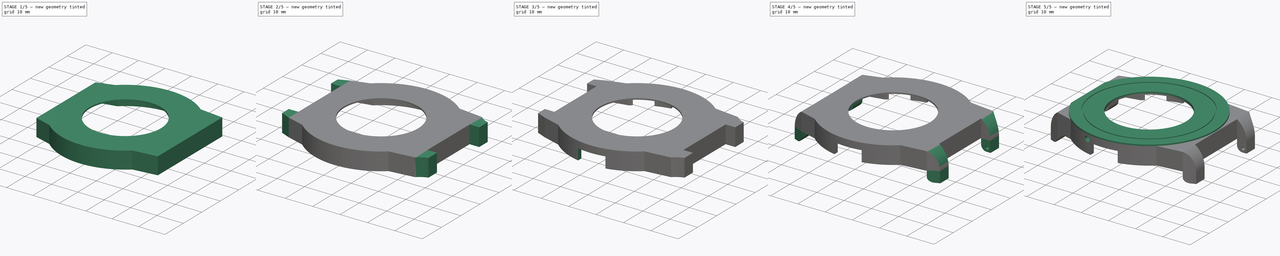
[diagram: build sequence overview — one tinted view per stage of 5, left to right]
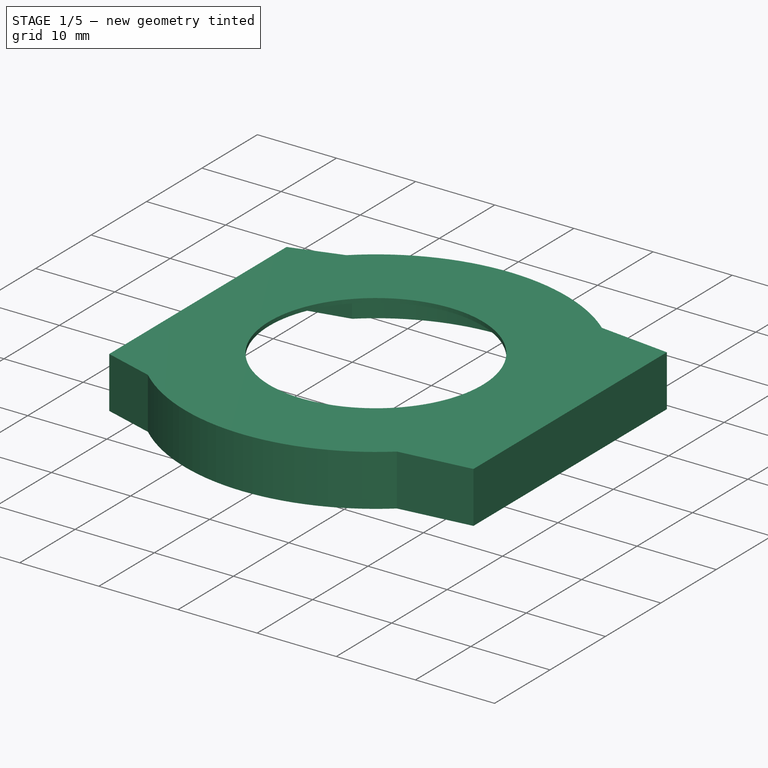
[diagram: stage 1 of 5 — iso view after this stage's code; geometry added in this stage tinted green]
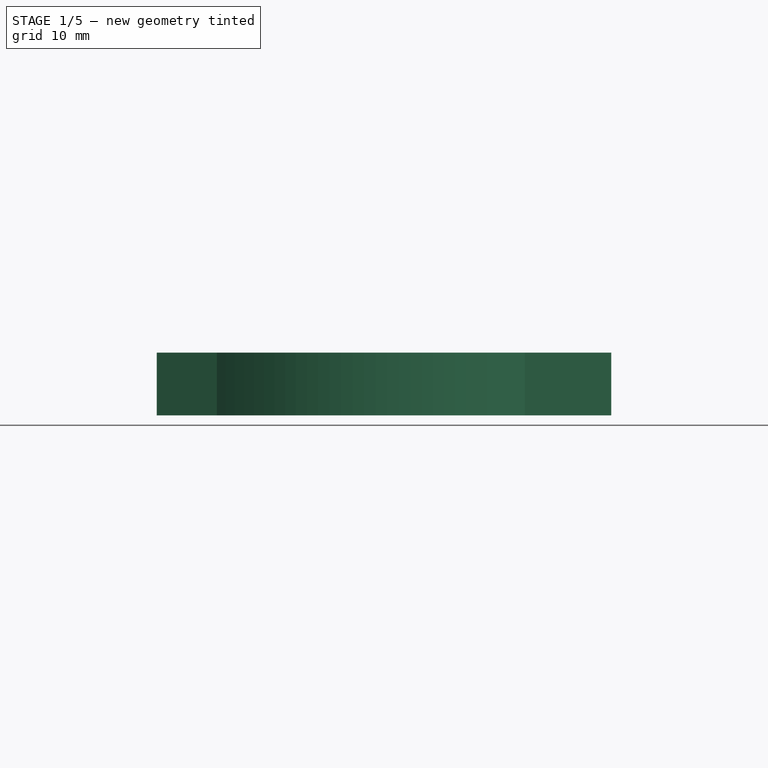
[diagram: stage 1 of 5 — front view after this stage's code; geometry added in this stage tinted green]
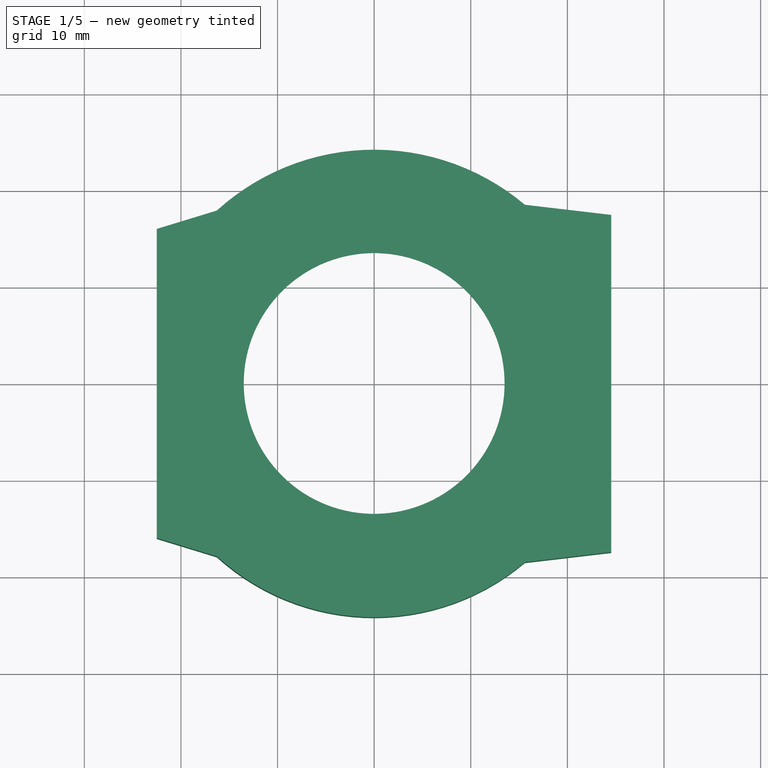
[diagram: stage 1 of 5 — top view after this stage's code; geometry added in this stage tinted green]
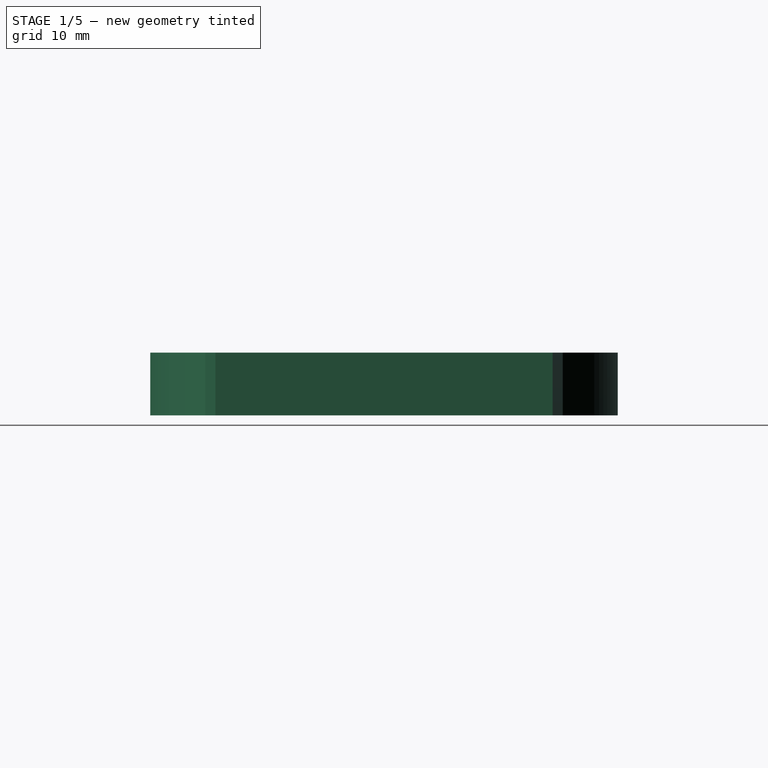
[diagram: stage 1 of 5 — right view after this stage's code; geometry added in this stage tinted green]
FCSTD DOCUMENT  (FreeCAD 0.20RUnknown)
Label: case
License: All rights reserved
LicenseURL: http://en.wikipedia.org/wiki/All_rights_reserved
objects: Sketcher::SketchObject×17, PartDesign::Pocket×11, PartDesign::Pad×6, PartDesign::Plane×1, PartDesign::Body×1
note: 53 computed .brp shape members not serialized (recipe doc carries the construction recipe); baked Part::Feature solids carry a one-line shape summary decoded from their .brp

FEATURE [Sketcher::SketchObject] Sketch  label="External"
  FullyConstrained = true
  MapMode = 5
  Support = -> [XY_Plane]
  sketch-geometry (8):
    g0: LineSegment StartX=-22.502 StartY=16 StartZ=0 EndX=-22.502 EndY=-16 EndZ=0
    g1: LineSegment StartX=-22.502 StartY=16 StartZ=0 EndX=-16.2859 EndY=17.9 EndZ=0
    g2: LineSegment StartX=-22.502 StartY=-16 StartZ=0 EndX=-16.2859 EndY=-17.9 EndZ=0
    g3: LineSegment StartX=15.601 StartY=18.5 StartZ=0 EndX=24.5395 EndY=17.45 EndZ=0
    g4: LineSegment StartX=15.601 StartY=-18.5 StartZ=0 EndX=24.5395 EndY=-17.45 EndZ=0
    g5: LineSegment StartX=24.5395 StartY=17.45 StartZ=0 EndX=24.5395 EndY=-17.45 EndZ=0
    g6: ArcOfCircle CenterX=0 CenterY=0 CenterZ=0 NormalX=0 NormalY=0 NormalZ=1 AngleXU=0 Radius=24.2 StartAngle=0.870208 EndAngle=2.30901
    g7: ArcOfCircle CenterX=0 CenterY=0 CenterZ=0 NormalX=0 NormalY=0 NormalZ=1 AngleXU=0 Radius=24.2 StartAngle=3.97417 EndAngle=5.41298
  constraints (21):
    c: Distance(g0) = 32
    c: Symmetric(g0,g0,g-1)
    c: Coincident(g1,g0)
    c: Distance(g1) = 6.5
    c: Coincident(g2,g0)
    c: Symmetric(g1,g2,g-1)
    c: Distance(g1,g2) = 35.8
    c: Symmetric(g3,g4,g-1)
    c: Symmetric(g4,g3,g-1)
    c: Distance(g3) = 9
    c: Distance(g3,g4) = 34.9
    c: Distance(g3,g4) = 37
    c: Coincident(g5,g3)
    c: Coincident(g5,g4)
    c: Coincident(g6,g-1)
    c: Coincident(g6,g1)
    c: Coincident(g6,g3)
    c: Coincident(g7,g6)
    c: Coincident(g7,g4)
    c: Coincident(g7,g2)
    c: Radius(g6) = 24.2
FEATURE [PartDesign::Pad] Pad  label="Main"
  Direction = (0,0,1)
  Length = 6.5
  Length2 = 100
  Profile = -> Sketch
  Type = 0
FEATURE [Sketcher::SketchObject] Sketch001  label="Internal"
  FullyConstrained = true
  MapMode = 5
  Support = -> [XY_Plane]
  sketch-geometry (8):
    g0: LineSegment StartX=-14.854 StartY=16.9 StartZ=0 EndX=-21.2122 EndY=15.55 EndZ=0
    g1: LineSegment StartX=-21.2122 StartY=-15.55 StartZ=0 EndX=-14.854 EndY=-16.9 EndZ=0
    g2: LineSegment StartX=-21.2122 StartY=15.55 StartZ=0 EndX=-21.2122 EndY=-15.55 EndZ=0
    g3: LineSegment StartX=14.7394 StartY=17 StartZ=0 EndX=23.6192 EndY=16.4 EndZ=0
    g4: LineSegment StartX=14.7394 StartY=-17 StartZ=0 EndX=23.6192 EndY=-16.4 EndZ=0
    g5: LineSegment StartX=23.6192 StartY=16.4 StartZ=0 EndX=23.6192 EndY=-16.4 EndZ=0
    g6: ArcOfCircle CenterX=0 CenterY=0 CenterZ=0 NormalX=0 NormalY=0 NormalZ=1 AngleXU=0 Radius=22.5 StartAngle=0.856502 EndAngle=2.29185
    g7: ArcOfCircle CenterX=0 CenterY=0 CenterZ=0 NormalX=0 NormalY=0 NormalZ=1 AngleXU=0 Radius=22.5 StartAngle=3.99134 EndAngle=5.42668
  constraints (21):
    c: Symmetric(g0,g1,g-1)
    c: Symmetric(g0,g1,g-1)
    c: Distance(g0) = 6.5
    c: Distance(g0,g1) = 31.1
    c: Distance(g0,g1) = 33.8
    c: Coincident(g2,g0)
    c: Coincident(g2,g1)
    c: Symmetric(g3,g4,g-1)
    c: Symmetric(g3,g4,g-1)
    c: Distance(g3,g4) = 34
    c: Distance(g3,g4) = 32.8
    c: Distance(g3,g3) = 8.9
    c: Coincident(g5,g3)
    c: Coincident(g5,g4)
    c: Coincident(g6,g-1)
    c: Coincident(g6,g0)
    c: Coincident(g6,g3)
    c: Coincident(g7,g6)
    c: Coincident(g7,g4)
    c: Coincident(g7,g1)
    c: Radius(g6) = 22.5
FEATURE [PartDesign::Pocket] Pocket  label="PCB pocket"
  BaseFeature = -> Pad
  Direction = (0,0,-1)
  Length = 6
  Length2 = 100
  Profile = -> Sketch001
  Reversed = true
  Type = 0
FEATURE [Sketcher::SketchObject] Sketch002  label="window"
  FullyConstrained = true
  MapMode = 5
  Placement = pos=(0,0,6) rot=(1,0,0;3.14159rad)
  Support = -> [Pocket]
  sketch-geometry (1):
    g0: Circle CenterX=0 CenterY=0 CenterZ=0 NormalX=0 NormalY=0 NormalZ=1 AngleXU=0 Radius=13.5
  constraints (2):
    c: Coincident(g0,g-1)
    c: Radius(g0) = 13.5
FEATURE [PartDesign::Pocket] Pocket001  label="Display surface"
  BaseFeature = -> Pocket
  Direction = (0,0,1)
  Length = 1
  Length2 = 100
  Profile = -> Sketch002
  Type = 0
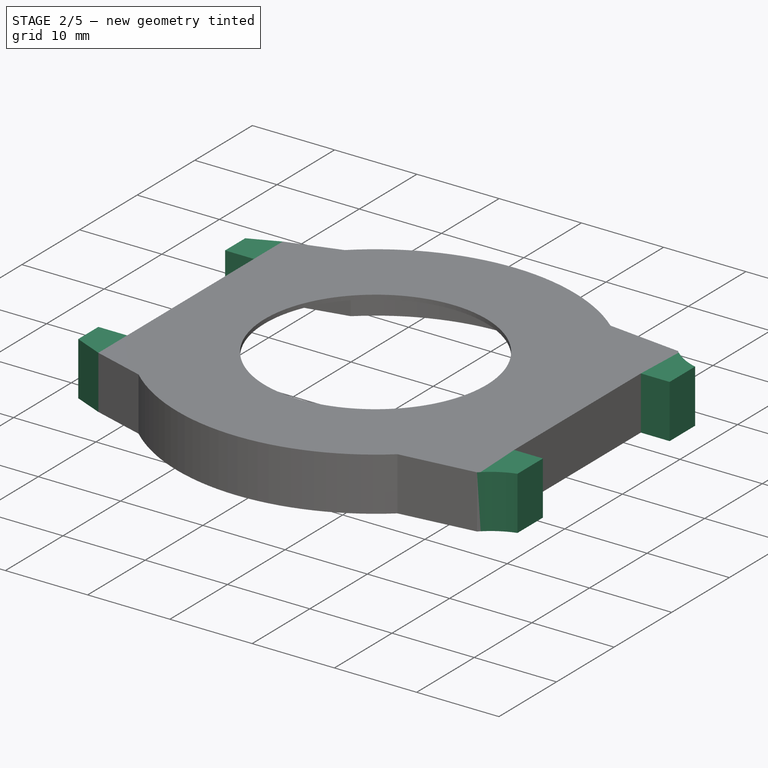
[diagram: stage 2 of 5 — iso view after this stage's code; geometry added in this stage tinted green]
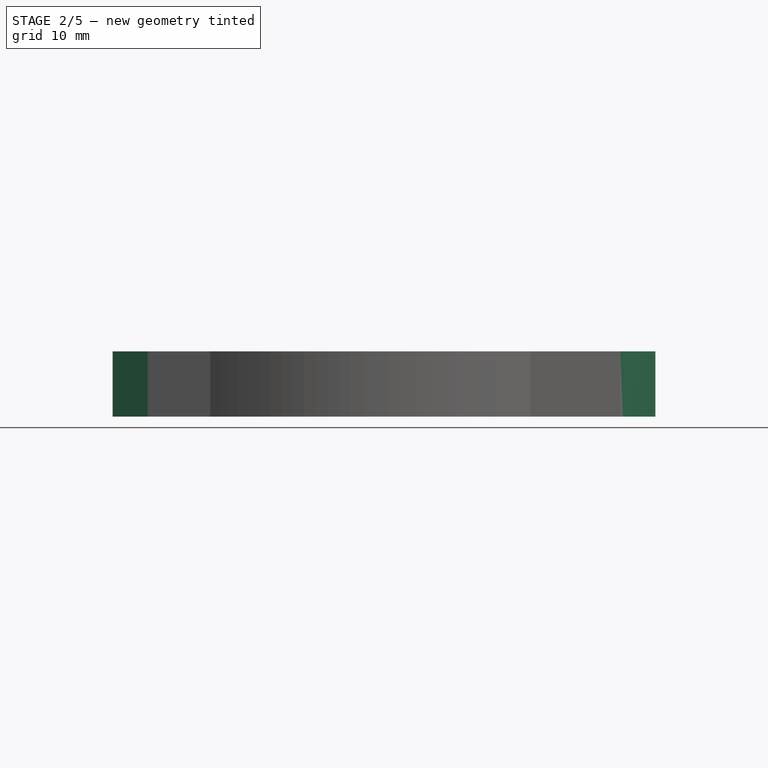
[diagram: stage 2 of 5 — front view after this stage's code; geometry added in this stage tinted green]
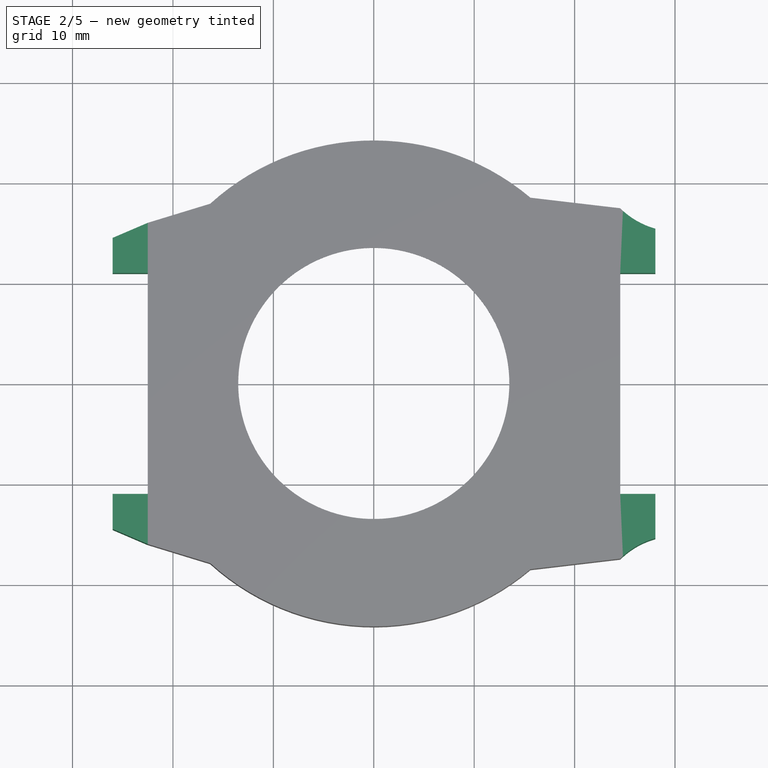
[diagram: stage 2 of 5 — top view after this stage's code; geometry added in this stage tinted green]
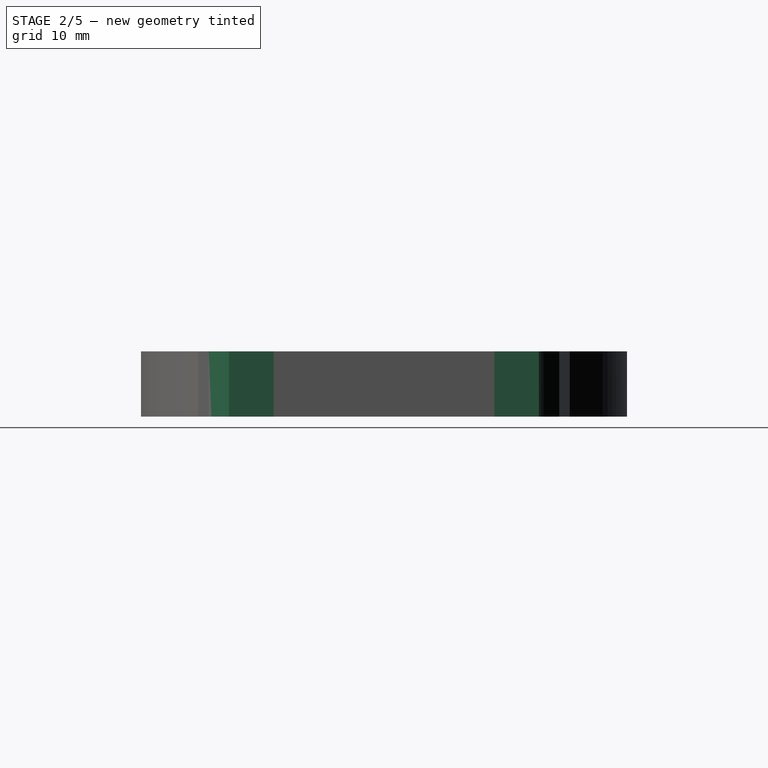
[diagram: stage 2 of 5 — right view after this stage's code; geometry added in this stage tinted green]
FEATURE [Sketcher::SketchObject] Sketch003  label="B telescope holder"
  ExternalGeometry = -> [Sketch,Pocket001]
  FullyConstrained = true
  MapMode = 5
  Placement = pos=(24.5395,0,0) rot=(0.57735,0.57735,0.57735;2.0944rad)
  Support = -> [Pad]
  sketch-geometry (8):
    g0: LineSegment StartX=-11 StartY=6.5 StartZ=0 EndX=-17.45 EndY=6.5 EndZ=0
    g1: LineSegment StartX=-17.45 StartY=6.5 StartZ=0 EndX=-17.45 EndY=0 EndZ=0
    g2: LineSegment StartX=-17.45 StartY=0 StartZ=0 EndX=-11 EndY=0 EndZ=0
    g3: LineSegment StartX=-11 StartY=0 StartZ=0 EndX=-11 EndY=6.5 EndZ=0
    g4: LineSegment StartX=11 StartY=6.5 StartZ=0 EndX=17.45 EndY=6.5 EndZ=0
    g5: LineSegment StartX=17.45 StartY=6.5 StartZ=0 EndX=17.45 EndY=0 EndZ=0
    g6: LineSegment StartX=17.45 StartY=0 StartZ=0 EndX=11 EndY=0 EndZ=0
    g7: LineSegment StartX=11 StartY=0 StartZ=0 EndX=11 EndY=6.5 EndZ=0
  constraints (20):
    c: Coincident(g0,g1)
    c: Coincident(g1,g2)
    c: Coincident(g2,g3)
    c: Coincident(g3,g0)
    c: Horizontal(g0)
    c: Horizontal(g2)
    c: Vertical(g1)
    c: Vertical(g3)
    c: Coincident(g1,g-3)
    c: Coincident(g4,g5)
    c: Coincident(g5,g6)
    c: Coincident(g6,g7)
    c: Coincident(g7,g4)
    c: Horizontal(g4)
    c: Horizontal(g6)
    c: Vertical(g7)
    c: Coincident(g5,g-4)
    c: Symmetric(g0,g4,g-2)
    c: Coincident(g4,g-6)
    c: Distance(g2,g6) = 22
FEATURE [PartDesign::Pad] Pad001  label="B holder"
  BaseFeature = -> Pocket001
  Direction = (1,0,0)
  Length = 3.5
  Length2 = 100
  Profile = -> Sketch003
  ReferenceAxis = -> Sketch003 [N_Axis]
  Type = 0
FEATURE [Sketcher::SketchObject] Sketch006
  ExternalGeometry = -> [Sketch003,Pad001]
  FullyConstrained = true
  MapMode = 5
  Placement = pos=(0,0,6.5) rot=(0,0,1;0rad)
  Support = -> [Pad001]
  sketch-geometry (6):
    g0: ArcOfCircle CenterX=30.1895 CenterY=23.15 CenterZ=0 NormalX=0 NormalY=0 NormalZ=1 AngleXU=0 Radius=8.02574 StartAngle=3.9314 EndAngle=4.44119
    g1: ArcOfCircle CenterX=30.1895 CenterY=-23.15 CenterZ=0 NormalX=0 NormalY=0 NormalZ=1 AngleXU=0 Radius=8.02574 StartAngle=1.842 EndAngle=2.35179
    g2: LineSegment StartX=28.0395 StartY=17.45 StartZ=0 EndX=24.5395 EndY=17.45 EndZ=0
    g3: LineSegment StartX=28.0395 StartY=17.45 StartZ=0 EndX=28.0395 EndY=15.4176 EndZ=0
    g4: LineSegment StartX=28.0395 StartY=-15.4176 StartZ=0 EndX=28.0395 EndY=-17.45 EndZ=0
    g5: LineSegment StartX=28.0395 StartY=-17.45 StartZ=0 EndX=24.5395 EndY=-17.45 EndZ=0
  constraints (15):
    c: Distance(g0,g1) = 46.3
    c: Symmetric(g0,g1,g-1)
    c: Symmetric(g0,g1,g-1)
    c: Coincident(g0,g-3)
    c: PointOnObject(g0,g-4)
    c: DistanceX(g-4,g0) = 2.15
    c: PointOnObject(g1,g-5)
    c: Coincident(g2,g-4)
    c: Coincident(g2,g0)
    c: Coincident(g3,g2)
    c: Coincident(g3,g0)
    c: Coincident(g4,g1)
    c: Coincident(g4,g-5)
    c: Coincident(g5,g4)
    c: Coincident(g5,g1)
FEATURE [PartDesign::Pocket] Pocket002  label="B holder cutoff"
  BaseFeature = -> Pad001
  Direction = (0,0,-1)
  Length = 10
  Length2 = 100
  Profile = -> Sketch006
  Type = 0
FEATURE [Sketcher::SketchObject] Sketch010
  ExternalGeometry = -> [Sketch,Pad]
  FullyConstrained = true
  MapMode = 5
  Placement = pos=(-22.502,0,0) rot=(0.57735,-0.57735,-0.57735;2.0944rad)
  Support = -> [Pad]
  sketch-geometry (8):
    g0: LineSegment StartX=-16 StartY=6.5 StartZ=0 EndX=-11 EndY=6.5 EndZ=0
    g1: LineSegment StartX=-11 StartY=6.5 StartZ=0 EndX=-11 EndY=0 EndZ=0
    g2: LineSegment StartX=-11 StartY=0 StartZ=0 EndX=-16 EndY=0 EndZ=0
    g3: LineSegment StartX=-16 StartY=0 StartZ=0 EndX=-16 EndY=6.5 EndZ=0
    g4: LineSegment StartX=16 StartY=6.5 StartZ=0 EndX=11 EndY=6.5 EndZ=0
    g5: LineSegment StartX=11 StartY=6.5 StartZ=0 EndX=11 EndY=0 EndZ=0
    g6: LineSegment StartX=11 StartY=0 StartZ=0 EndX=16 EndY=0 EndZ=0
    g7: LineSegment StartX=16 StartY=0 StartZ=0 EndX=16 EndY=6.5 EndZ=0
  constraints (21):
    c: Coincident(g0,g1)
    c: Coincident(g1,g2)
    c: Coincident(g2,g3)
    c: Coincident(g3,g0)
    c: Horizontal(g0)
    c: Horizontal(g2)
    c: Vertical(g1)
    c: Vertical(g3)
    c: Coincident(g4,g5)
    c: Coincident(g5,g6)
    c: Coincident(g6,g7)
    c: Coincident(g7,g4)
    c: Horizontal(g6)
    c: Vertical(g5)
    c: Vertical(g7)
    c: PointOnObject(g5,g-1)
    c: Symmetric(g0,g4,g-2)
    c: Distance(g0,g4) = 22
    c: PointOnObject(g1,g-1)
    c: Coincident(g4,g-5)
    c: Symmetric(g4,g0,g-2)
FEATURE [PartDesign::Pad] Pad002  label="T holder"
  BaseFeature = -> Pocket002
  Direction = (-1,0,0)
  Length = 3.5
  Length2 = 100
  Profile = -> Sketch010
  ReferenceAxis = -> Sketch010 [N_Axis]
  Type = 0
FEATURE [Sketcher::SketchObject] Sketch011
  ExternalGeometry = -> [Pad002]
  FullyConstrained = true
  MapMode = 5
  Placement = pos=(0,0,6.5) rot=(0,0,1;0rad)
  Support = -> [Pad002]
  sketch-geometry (6):
    g0: LineSegment StartX=-26.002 StartY=16 StartZ=0 EndX=-22.502 EndY=16 EndZ=0
    g1: LineSegment StartX=-22.502 StartY=16 StartZ=0 EndX=-26.002 EndY=14.5 EndZ=0
    g2: LineSegment StartX=-26.002 StartY=16 StartZ=0 EndX=-26.002 EndY=14.5 EndZ=0
    g3: LineSegment StartX=-22.502 StartY=-16 StartZ=0 EndX=-26.002 EndY=-14.5 EndZ=0
    g4: LineSegment StartX=-26.002 StartY=-14.5 StartZ=0 EndX=-26.002 EndY=-16 EndZ=0
    g5: LineSegment StartX=-22.502 StartY=-16 StartZ=0 EndX=-26.002 EndY=-16 EndZ=0
  constraints (14):
    c: Coincident(g0,g-3)
    c: Coincident(g1,g0)
    c: Coincident(g2,g0)
    c: Coincident(g2,g1)
    c: Coincident(g0,g-5)
    c: PointOnObject(g1,g-6)
    c: DistanceY(g2,g2) = 1.5
    c: Coincident(g3,g-7)
    c: PointOnObject(g3,g-8)
    c: Coincident(g4,g3)
    c: Coincident(g4,g-8)
    c: Coincident(g5,g3)
    c: Coincident(g5,g4)
    c: Equal(g4,g2)
FEATURE [PartDesign::Pocket] Pocket005  label="T holder cutoff"
  BaseFeature = -> Pad002
  Direction = (0,0,-1)
  Length = 10
  Length2 = 100
  Profile = -> Sketch011
  ReferenceAxis = -> Sketch011 [N_Axis]
  Type = 0
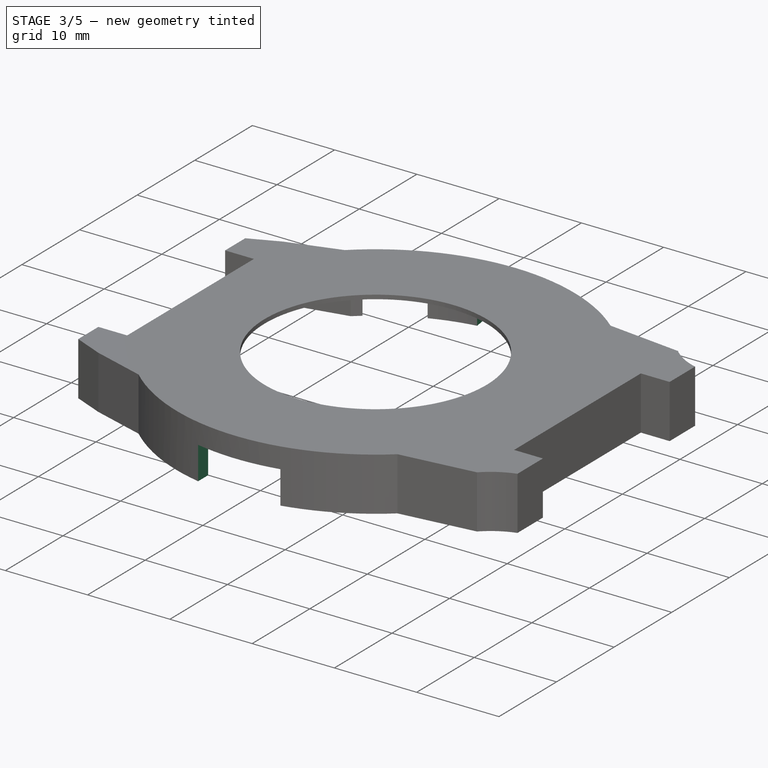
[diagram: stage 3 of 5 — iso view after this stage's code; geometry added in this stage tinted green]
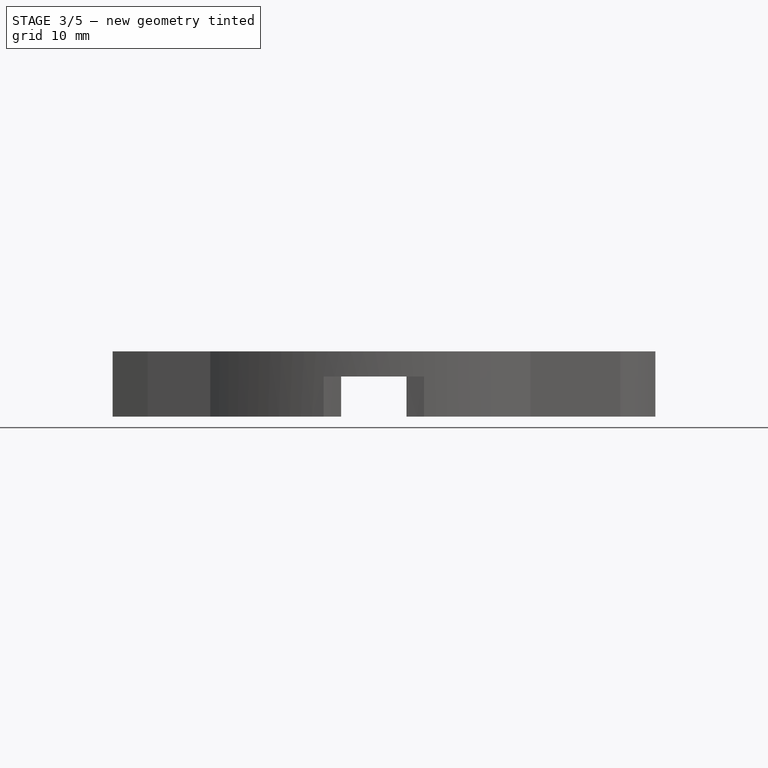
[diagram: stage 3 of 5 — front view after this stage's code; geometry added in this stage tinted green]
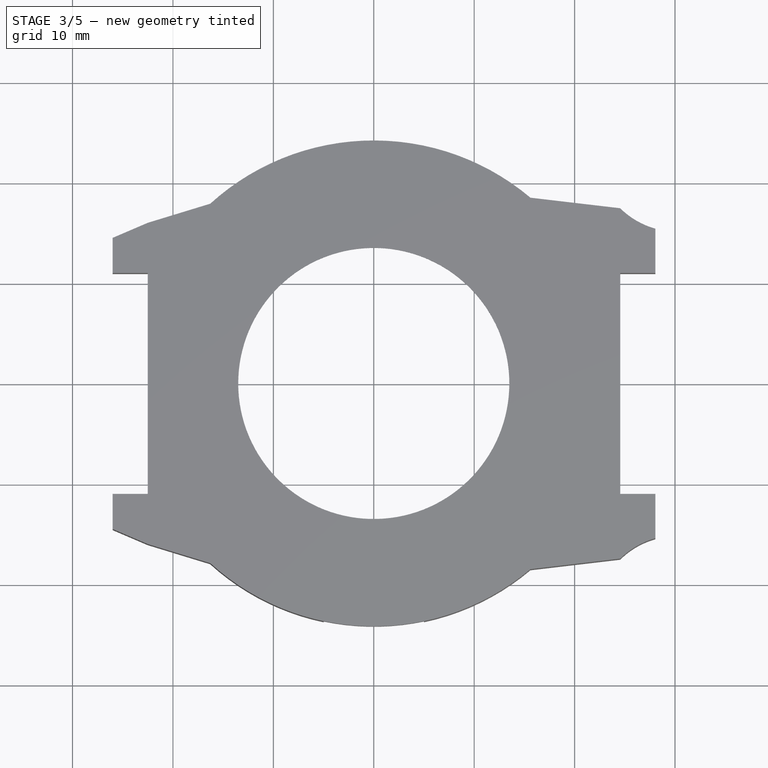
[diagram: stage 3 of 5 — top view after this stage's code; geometry added in this stage tinted green]
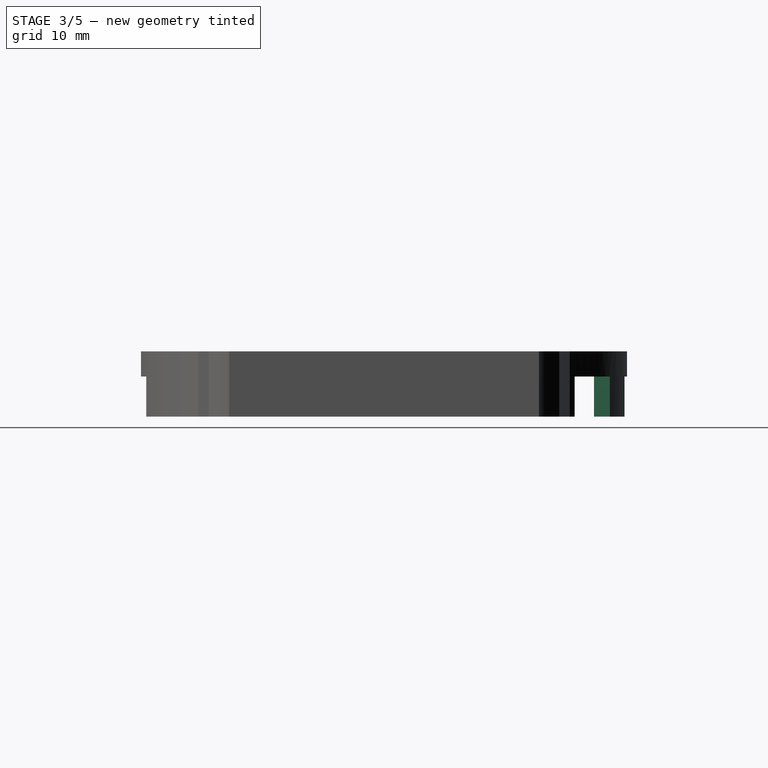
[diagram: stage 3 of 5 — right view after this stage's code; geometry added in this stage tinted green]
FEATURE [Sketcher::SketchObject] Sketch015
  FullyConstrained = true
  MapMode = 5
  Placement = pos=(0,0,6) rot=(1,0,0;3.14159rad)
  Support = -> [Pocket]
  sketch-geometry (8):
    g0: Circle CenterX=-18.42 CenterY=13.32 CenterZ=0 NormalX=0 NormalY=0 NormalZ=1 AngleXU=0 Radius=1.025
    g1: Circle CenterX=-18.42 CenterY=-13.32 CenterZ=0 NormalX=0 NormalY=0 NormalZ=1 AngleXU=0 Radius=1.025
    g2: Circle CenterX=7.27 CenterY=18.56 CenterZ=0 NormalX=0 NormalY=0 NormalZ=1 AngleXU=0 Radius=1.025
    g3: Circle CenterX=5.37 CenterY=-19.79 CenterZ=0 NormalX=0 NormalY=0 NormalZ=1 AngleXU=0 Radius=1.025
    g4: Circle CenterX=-18.42 CenterY=13.32 CenterZ=0 NormalX=0 NormalY=0 NormalZ=1 AngleXU=0 Radius=2.2
    g5: Circle CenterX=7.27 CenterY=18.56 CenterZ=0 NormalX=0 NormalY=0 NormalZ=1 AngleXU=0 Radius=2.2
    g6: Circle CenterX=5.37 CenterY=-19.79 CenterZ=0 NormalX=0 NormalY=0 NormalZ=1 AngleXU=0 Radius=2.2
    g7: Circle CenterX=-18.42 CenterY=-13.32 CenterZ=0 NormalX=0 NormalY=0 NormalZ=1 AngleXU=0 Radius=2.2
  constraints (19):
    c: Symmetric(g0,g1,g-1)
    c: Diameter(g0) = 2.05
    c: DistanceY(g1,g0) = 26.64
    c: DistanceX(g0,g-1) = 18.42
    c: DistanceY(g-1,g2) = 18.56
    c: DistanceY(g3,g-1) = 19.79
    c: DistanceX(g-1,g2) = 7.27
    c: DistanceX(g-1,g3) = 5.37
    c: Coincident(g4,g0)
    c: Coincident(g5,g2)
    c: Coincident(g6,g3)
    c: Coincident(g7,g1)
    c: Diameter(g4) = 4.4
    c: Diameter(g5) = 4.4
    c: Diameter(g7) = 4.4
    c: Diameter(g6) = 4.4
    c: Equal(g0,g2)
    c: Equal(g0,g1)
    c: Equal(g0,g3)
FEATURE [PartDesign::Pad] Pad003  label="Fix posts"
  BaseFeature = -> Pocket005
  Direction = (0,0,-1)
  Length = 2
  Length2 = 10
  Profile = -> Sketch015
  ReferenceAxis = -> Sketch015 [N_Axis]
  Type = 0
FEATURE [Sketcher::SketchObject] Sketch016
  ExternalGeometry = -> [Pocket]
  FullyConstrained = false
  MapMode = 5
  Placement = pos=(0,0,0) rot=(1,0,0;3.14159rad)
  Support = -> [Pocket]
  sketch-geometry (4):
    g0: LineSegment StartX=-4.99923 StartY=23.678 StartZ=0 EndX=-5.00077 EndY=21.9372 EndZ=0
    g1: LineSegment StartX=5.00077 StartY=23.6777 StartZ=0 EndX=5.00077 EndY=21.9372 EndZ=0
    g2: ArcOfCircle CenterX=0 CenterY=0 CenterZ=0 NormalX=0 NormalY=0 NormalZ=1 AngleXU=0 Radius=24.2 StartAngle=1.36265 EndAngle=1.77887
    g3: ArcOfCircle CenterX=0 CenterY=0 CenterZ=0 NormalX=0 NormalY=0 NormalZ=1 AngleXU=0 Radius=22.5 StartAngle=1.34667 EndAngle=1.79492
  constraints (11):
    c: Vertical(g1)
    c: DistanceX(g0,g1) = 10
    c: Symmetric(g0,g1,g-2)
    c: PointOnObject(g0,g-3)
    c: Coincident(g2,g-3)
    c: Coincident(g2,g0)
    c: Coincident(g2,g1)
    c: Coincident(g3,g2)
    c: Coincident(g3,g0)
    c: Coincident(g3,g1)
    c: PointOnObject(g0,g-4)
FEATURE [PartDesign::Pocket] Pocket009  label="USB"
  BaseFeature = -> Pad003
  Direction = (0,0,1)
  Length = 4
  Length2 = 5
  Profile = -> Sketch016
  ReferenceAxis = -> Sketch016 [N_Axis]
  Type = 0
FEATURE [Sketcher::SketchObject] Sketch017
  ExternalGeometry = -> [Pocket009]
  FullyConstrained = false
  MapMode = 5
  Placement = pos=(0,0,0) rot=(1,0,0;3.14159rad)
  Support = -> [Pocket]
  sketch-geometry (14):
    g0: LineSegment StartX=-4.9e-15 StartY=1.17e-14 StartZ=0 EndX=-16.8028 EndY=-29.1034 EndZ=0
    g1: LineSegment StartX=-4.9e-15 StartY=1.17e-14 StartZ=0 EndX=12.3407 EndY=-21.3746 EndZ=0
    g2: ArcOfCircle CenterX=-4.9e-15 CenterY=1.17e-14 CenterZ=0 NormalX=0 NormalY=0 NormalZ=1 AngleXU=0 Radius=22.5 StartAngle=4.56725 EndAngle=4.85753
    g3: ArcOfCircle CenterX=-4.9e-15 CenterY=1.17e-14 CenterZ=0 NormalX=0 NormalY=0 NormalZ=1 AngleXU=0 Radius=24.2 StartAngle=4.56725 EndAngle=4.85753
    g4: ArcOfCircle CenterX=-4.9e-15 CenterY=1.17e-14 CenterZ=0 NormalX=0 NormalY=0 NormalZ=1 AngleXU=0 Radius=22.5 StartAngle=4.04365 EndAngle=4.33393
    g5: ArcOfCircle CenterX=8.16e-14 CenterY=1.454e-13 CenterZ=0 NormalX=0 NormalY=0 NormalZ=1 AngleXU=0 Radius=24.2 StartAngle=4.04365 EndAngle=4.33393
    g6: LineSegment StartX=-13.9499 StartY=-17.6536 StartZ=0 EndX=-15.0039 EndY=-18.9875 EndZ=0
    g7: LineSegment StartX=-8.31356 StartY=-20.9078 StartZ=0 EndX=-8.94169 EndY=-22.4875 EndZ=0
    g8: LineSegment StartX=-3.25413 StartY=-22.2634 StartZ=0 EndX=-3.5 EndY=-23.9456 EndZ=0
    g9: LineSegment StartX=3.25413 StartY=-22.2634 StartZ=0 EndX=3.5 EndY=-23.9456 EndZ=0
    g10: ArcOfCircle CenterX=-4.9e-15 CenterY=1.17e-14 CenterZ=0 NormalX=0 NormalY=0 NormalZ=1 AngleXU=0 Radius=22.5 StartAngle=5.09085 EndAngle=5.38112
    g11: ArcOfCircle CenterX=-4.9e-15 CenterY=1.17e-14 CenterZ=0 NormalX=0 NormalY=0 NormalZ=1 AngleXU=0 Radius=24.2 StartAngle=5.09085 EndAngle=5.38112
    g12: LineSegment StartX=8.31356 StartY=-20.9078 StartZ=0 EndX=8.94169 EndY=-22.4875 EndZ=0
    g13: LineSegment StartX=13.9499 StartY=-17.6536 StartZ=0 EndX=15.0039 EndY=-18.9875 EndZ=0
  constraints (40):
    c: Angle(g1,g-2) = 2.61799
    c: Angle(g-2,g0) = 2.61799
    c: Coincident(g2,g0)
    c: Coincident(g3,g2)
    c: PointOnObject(g3,g-5)
    c: Coincident(g4,g2)
    c: PointOnObject(g5,g-5)
    c: Coincident(g6,g4)
    c: Coincident(g6,g5)
    c: Coincident(g7,g4)
    c: Coincident(g7,g5)
    c: Coincident(g8,g2)
    c: Coincident(g8,g3)
    c: Coincident(g9,g2)
    c: Coincident(g9,g3)
    c: Distance(g5,g5) = 7
    c: Perpendicular(g5,g6)
    c: Perpendicular(g5,g7)
    c: Symmetric(g5,g5,g0)
    c: Symmetric(g3,g3,g-2)
    c: Distance(g3,g3) = 7
    c: Coincident(g2,g1)
    c: Coincident(g10,g2)
    c: PointOnObject(g10,g-6)
    c: PointOnObject(g10,g-6)
    c: Coincident(g11,g2)
    c: PointOnObject(g11,g-5)
    c: Coincident(g12,g10)
    c: Coincident(g12,g11)
    c: Coincident(g13,g10)
    c: Coincident(g13,g11)
    c: Perpendicular(g11,g12)
    c: Perpendicular(g11,g13)
    c: Distance(g11,g11) = 7
    c: PointOnObject(g2,g-6)
    c: Perpendicular(g2,g8)
    c: Perpendicular(g4,g6)
    c: PointOnObject(g4,g-6)
    c: Perpendicular(g2,g9)
    c: Symmetric(g11,g11,g1)
FEATURE [PartDesign::Pocket] Pocket010  label="Touch"
  BaseFeature = -> Pocket009
  Direction = (0,0,1)
  Length = 4
  Length2 = 5
  Profile = -> Sketch017
  ReferenceAxis = -> Sketch017 [N_Axis]
  Type = 0
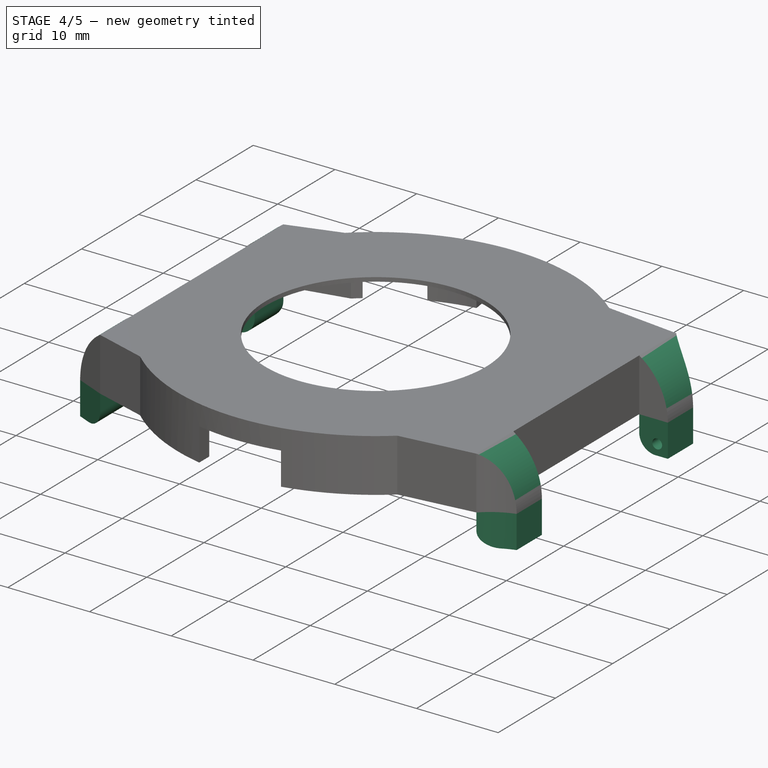
[diagram: stage 4 of 5 — iso view after this stage's code; geometry added in this stage tinted green]
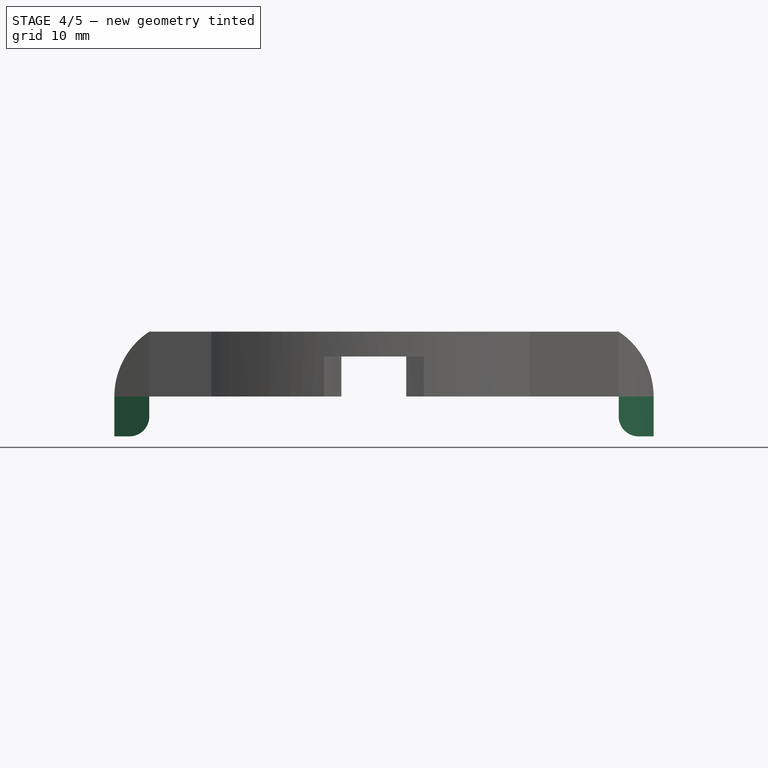
[diagram: stage 4 of 5 — front view after this stage's code; geometry added in this stage tinted green]
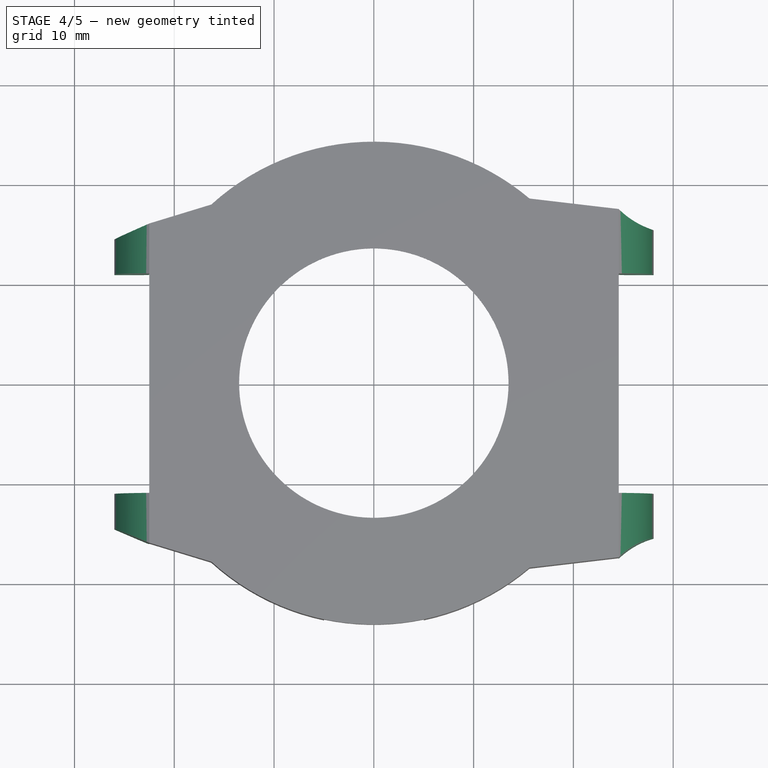
[diagram: stage 4 of 5 — top view after this stage's code; geometry added in this stage tinted green]
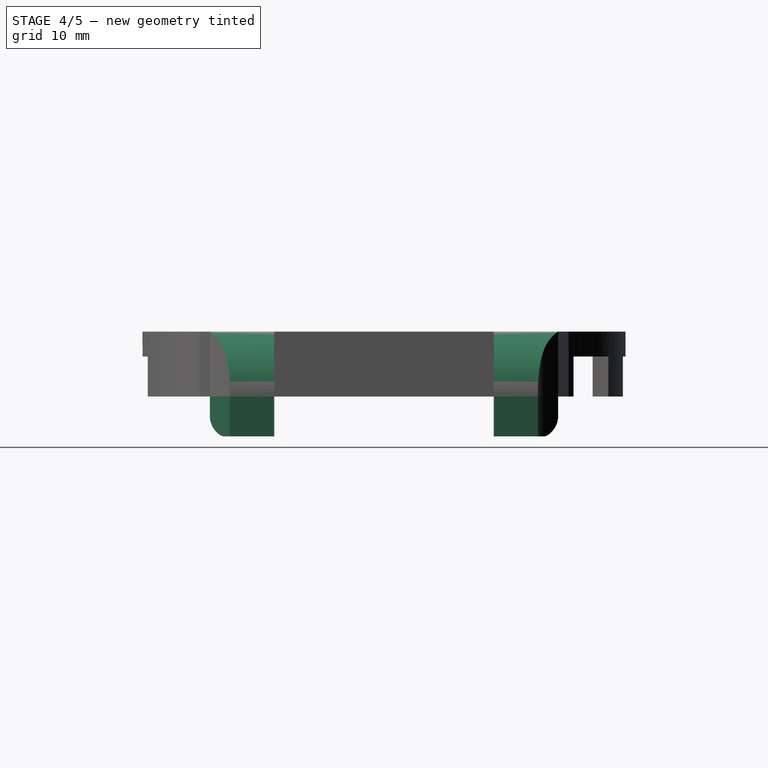
[diagram: stage 4 of 5 — right view after this stage's code; geometry added in this stage tinted green]
FEATURE [Sketcher::SketchObject] Sketch018
  ExternalGeometry = -> [Pocket005]
  FullyConstrained = true
  MapMode = 5
  Placement = pos=(0,0,0) rot=(1,0,0;3.14159rad)
  Support = -> [Pocket005]
  sketch-geometry (16):
    g0: LineSegment StartX=-26.002 StartY=14.5 StartZ=0 EndX=-26.002 EndY=11 EndZ=0
    g1: LineSegment StartX=-22.502 StartY=11 StartZ=0 EndX=-22.502 EndY=16 EndZ=0
    g2: LineSegment StartX=-26.002 StartY=11 StartZ=0 EndX=-22.502 EndY=11 EndZ=0
    g3: LineSegment StartX=-26.002 StartY=14.5 StartZ=0 EndX=-22.502 EndY=16 EndZ=0
    g4: LineSegment StartX=-26.002 StartY=-11 StartZ=0 EndX=-22.502 EndY=-11 EndZ=0
    g5: LineSegment StartX=-22.502 StartY=-11 StartZ=0 EndX=-22.502 EndY=-16 EndZ=0
    g6: LineSegment StartX=-22.502 StartY=-16 StartZ=0 EndX=-26.002 EndY=-14.5 EndZ=0
    g7: LineSegment StartX=-26.002 StartY=-14.5 StartZ=0 EndX=-26.002 EndY=-11 EndZ=0
    g8: LineSegment StartX=24.5395 StartY=17.45 StartZ=0 EndX=24.5395 EndY=11 EndZ=0
    g9: LineSegment StartX=24.5395 StartY=-11 StartZ=0 EndX=24.5395 EndY=-17.45 EndZ=0
    g10: LineSegment StartX=24.5395 StartY=-11 StartZ=0 EndX=28.0395 EndY=-11 EndZ=0
    g11: LineSegment StartX=28.0395 StartY=-11 StartZ=0 EndX=28.0395 EndY=-15.4176 EndZ=0
    g12: ArcOfCircle CenterX=30.1895 CenterY=-23.15 CenterZ=0 NormalX=0 NormalY=0 NormalZ=1 AngleXU=0 Radius=8.02574 StartAngle=1.842 EndAngle=2.35179
    g13: ArcOfCircle CenterX=30.1895 CenterY=23.15 CenterZ=0 NormalX=0 NormalY=0 NormalZ=1 AngleXU=0 Radius=8.02574 StartAngle=3.9314 EndAngle=4.44119
    g14: LineSegment StartX=28.0395 StartY=15.4176 StartZ=0 EndX=28.0395 EndY=11 EndZ=0
    g15: LineSegment StartX=28.0395 StartY=11 StartZ=0 EndX=24.5395 EndY=11 EndZ=0
  constraints (33):
    c: Coincident(g0,g-3)
    c: Coincident(g0,g-4)
    c: Coincident(g1,g-4)
    c: Coincident(g1,g-3)
    c: Coincident(g2,g0)
    c: Coincident(g2,g1)
    c: Coincident(g3,g0)
    c: Coincident(g3,g1)
    c: Coincident(g4,g-5)
    c: Coincident(g4,g-5)
    c: Coincident(g5,g4)
    c: Coincident(g5,g-6)
    c: Coincident(g6,g5)
    c: Coincident(g6,g-6)
    c: Coincident(g7,g6)
    c: Coincident(g7,g4)
    c: Coincident(g8,g-7)
    c: Coincident(g8,g-8)
    c: Coincident(g9,g-10)
    c: Coincident(g9,g-9)
    c: Coincident(g10,g9)
    c: Coincident(g10,g-10)
    c: Coincident(g11,g10)
    c: Coincident(g11,g-9)
    c: Coincident(g12,g9)
    c: Coincident(g12,g11)
    c: Coincident(g13,g8)
    c: Tangent(g13,g-7) = -1.5708
    c: Coincident(g14,g13)
    c: Coincident(g14,g-8)
    c: Coincident(g15,g14)
    c: Coincident(g15,g8)
    c: Tangent(g12,g-9)
FEATURE [PartDesign::Pad] Pad004  label="holders extension"
  BaseFeature = -> Pocket010
  Direction = (0,0,-1)
  Length = 4
  Length2 = 10
  Profile = -> Sketch018
  ReferenceAxis = -> Sketch018 [N_Axis]
  Type = 0
FEATURE [Sketcher::SketchObject] Sketch021
  ExternalGeometry = -> [Pad004]
  FullyConstrained = true
  MapMode = 5
  Placement = pos=(0,-11,0) rot=(0,0.707107,0.707107;3.14159rad)
  Support = -> [Pad004]
  sketch-geometry (12):
    g0: LineSegment StartX=-24.5395 StartY=-4 StartZ=0 EndX=-24.5395 EndY=-2 EndZ=0
    g1: LineSegment StartX=-24.5395 StartY=-4 StartZ=0 EndX=-26.5395 EndY=-4 EndZ=0
    g2: LineSegment StartX=22.502 StartY=-4 StartZ=0 EndX=22.502 EndY=-2 EndZ=0
    g3: LineSegment StartX=-28.0395 StartY=-6e-15 StartZ=0 EndX=-28.0395 EndY=6.5 EndZ=0
    g4: LineSegment StartX=-28.0395 StartY=6.5 StartZ=0 EndX=-24.5395 EndY=6.5 EndZ=0
    g5: ArcOfCircle CenterX=-20.2538 CenterY=0 CenterZ=0 NormalX=0 NormalY=0 NormalZ=1 AngleXU=0 Radius=7.78571 StartAngle=2.15371 EndAngle=3.14159
    g6: ArcOfCircle CenterX=-26.5395 CenterY=-2 CenterZ=0 NormalX=0 NormalY=0 NormalZ=1 AngleXU=0 Radius=2 StartAngle=4.71239 EndAngle=6.28319
    g7: LineSegment StartX=22.502 StartY=-4 StartZ=0 EndX=24.502 EndY=-4 EndZ=0
    g8: ArcOfCircle CenterX=24.502 CenterY=-2 CenterZ=0 NormalX=0 NormalY=0 NormalZ=1 AngleXU=0 Radius=2 StartAngle=3.14159 EndAngle=4.71239
    g9: LineSegment StartX=26.002 StartY=6.5 StartZ=0 EndX=26.002 EndY=-2.043e-13 EndZ=0
    g10: LineSegment StartX=26.002 StartY=6.5 StartZ=0 EndX=22.502 EndY=6.5 EndZ=0
    g11: ArcOfCircle CenterX=18.2163 CenterY=-1.6472e-12 CenterZ=0 NormalX=0 NormalY=0 NormalZ=1 AngleXU=0 Radius=7.78571 StartAngle=1.853e-13 EndAngle=0.987883
  constraints (34):
    c: Vertical(g0)
    c: Coincident(g1,g0)
    c: Horizontal(g1)
    c: Equal(g0,g1)
    c: Equal(g2,g0)
    c: Coincident(g2,g-11)
    c: PointOnObject(g2,g-11)
    c: Coincident(g0,g-4)
    c: Coincident(g3,g-5)
    c: Coincident(g3,g-12)
    c: Coincident(g4,g3)
    c: Coincident(g4,g-12)
    c: Coincident(g5,g4)
    c: Coincident(g5,g3)
    c: Coincident(g6,g0)
    c: Coincident(g6,g1)
    c: PointOnObject(g5,g-1)
    c: DistanceX(g6,g0) = 2
    c: DistanceY(g0,g0) = 2
    c: Coincident(g7,g2)
    c: Horizontal(g7)
    c: Coincident(g8,g2)
    c: Coincident(g8,g7)
    c: Equal(g8,g6)
    c: Equal(g7,g1)
    c: Coincident(g9,g-7)
    c: Vertical(g9)
    c: Coincident(g10,g9)
    c: PointOnObject(g10,g-7)
    c: Coincident(g11,g9)
    c: Coincident(g11,g10)
    c: Equal(g11,g5)
    c: Equal(g10,g4)
    c: Equal(g9,g3)
FEATURE [PartDesign::Pocket] Pocket013  label="holders side profile"
  BaseFeature = -> Pad004
  Direction = (0,-1,2e-16)
  Length = 10
  Length2 = 5
  Midplane = true
  Profile = -> Sketch021
  ReferenceAxis = -> Sketch021 [N_Axis]
  Type = 1
FEATURE [Sketcher::SketchObject] Sketch022
  ExternalGeometry = -> [Pocket013]
  FullyConstrained = true
  MapMode = 5
  Placement = pos=(0,11,0) rot=(1,0,0;1.5708rad)
  Support = -> [Pocket013]
  sketch-geometry (2):
    g0: Circle CenterX=-24.702 CenterY=-2.7 CenterZ=0 NormalX=0 NormalY=0 NormalZ=1 AngleXU=0 Radius=0.6
    g1: Circle CenterX=26.7395 CenterY=-2.7 CenterZ=0 NormalX=0 NormalY=0 NormalZ=1 AngleXU=0 Radius=0.6
  constraints (6):
    c: Equal(g0,g1)
    c: Diameter(g0) = 1.2
    c: DistanceX(g1,g-4) = 1.3
    c: DistanceY(g-4,g1) = 1.3
    c: DistanceY(g-5,g0) = 1.3
    c: DistanceX(g-5,g0) = 1.3
FEATURE [PartDesign::Pocket] Pocket014  label="Right telescope pocket"
  BaseFeature = -> Pocket013
  Direction = (0,1,-2e-16)
  Length = 2
  Length2 = 5
  Profile = -> Sketch022
  ReferenceAxis = -> Sketch022 [N_Axis]
  Type = 0
FEATURE [Sketcher::SketchObject] Sketch023
  ExternalGeometry = -> [Pocket014]
  FullyConstrained = true
  MapMode = 5
  Placement = pos=(0,-11,0) rot=(0,0.707107,0.707107;3.14159rad)
  Support = -> [Pocket014]
  sketch-geometry (2):
    g0: Circle CenterX=-26.7395 CenterY=-2.7 CenterZ=0 NormalX=0 NormalY=0 NormalZ=1 AngleXU=0 Radius=0.6
    g1: Circle CenterX=24.702 CenterY=-2.7 CenterZ=0 NormalX=0 NormalY=0 NormalZ=1 AngleXU=0 Radius=0.6
  constraints (6):
    c: Diameter(g0) = 1.2
    c: Equal(g0,g1)
    c: DistanceX(g1,g-4) = 1.3
    c: DistanceY(g-4,g1) = 1.3
    c: DistanceX(g-5,g0) = 1.3
    c: DistanceY(g-5,g0) = 1.3
FEATURE [PartDesign::Pocket] Pocket015  label="Left telescope pocket"
  BaseFeature = -> Pocket014
  Direction = (0,-1,2e-16)
  Length = 2
  Length2 = 5
  Profile = -> Sketch023
  ReferenceAxis = -> Sketch023 [N_Axis]
  Type = 0
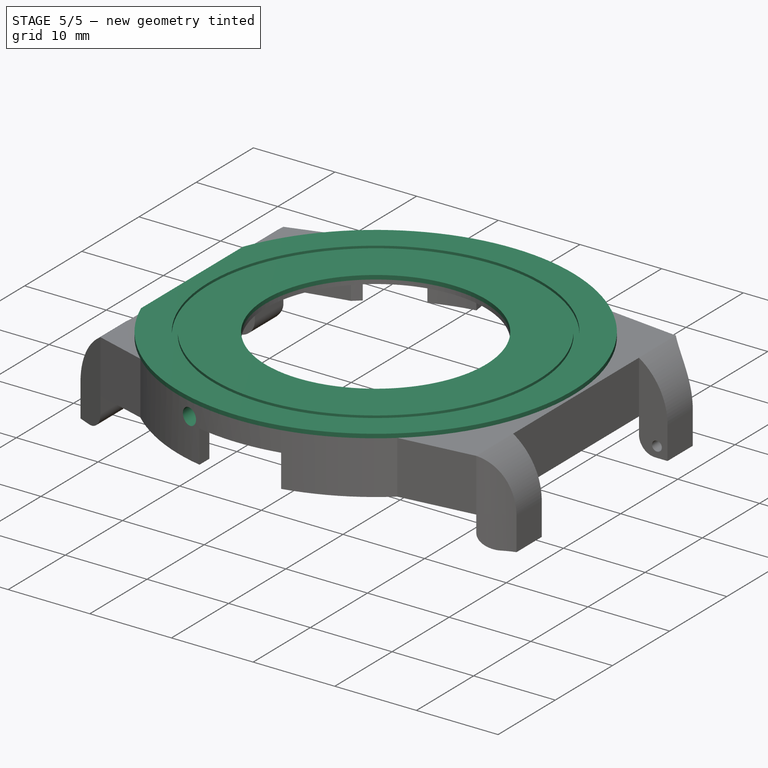
[diagram: stage 5 of 5 — iso view after this stage's code; geometry added in this stage tinted green]
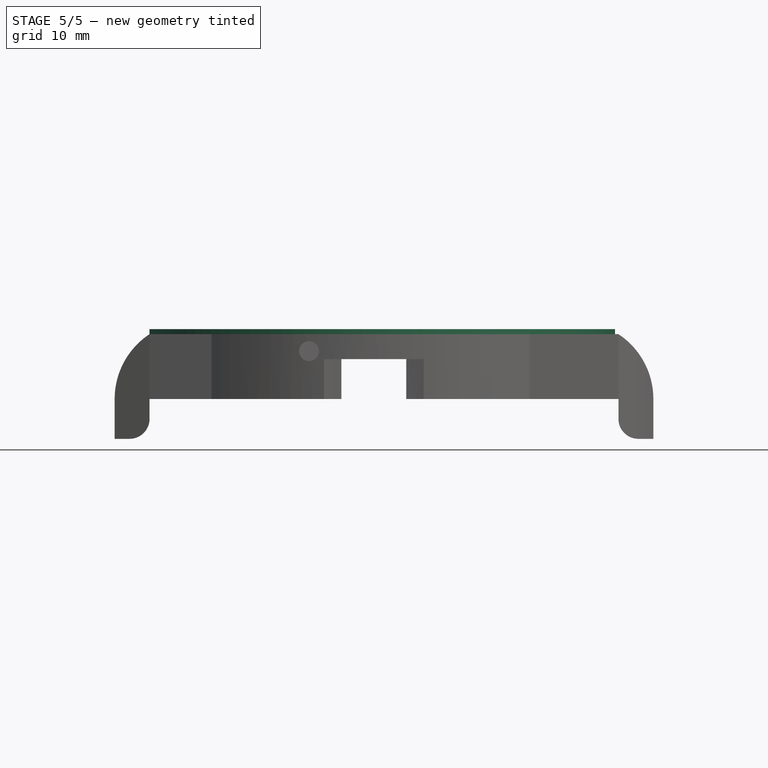
[diagram: stage 5 of 5 — front view after this stage's code; geometry added in this stage tinted green]
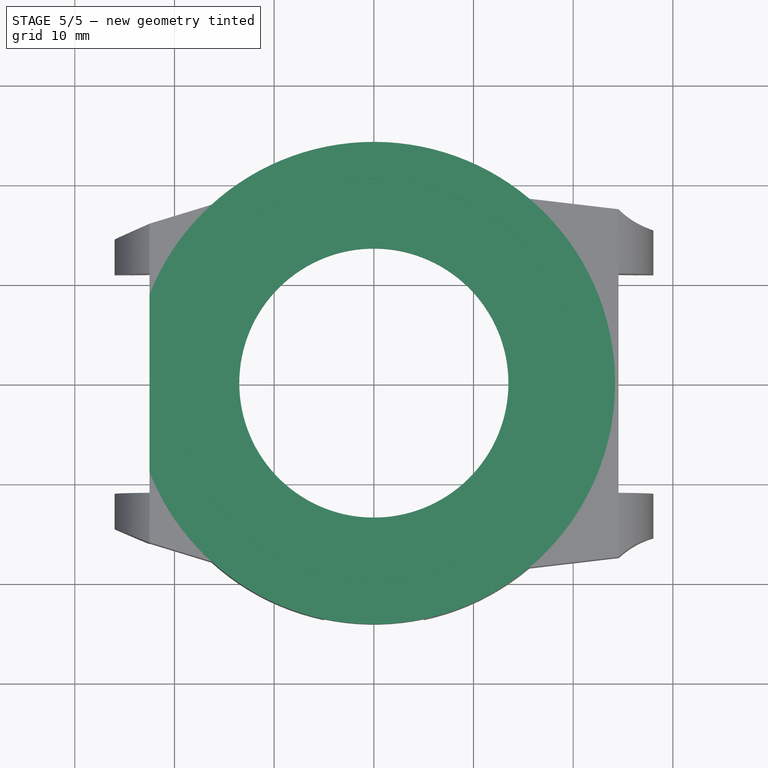
[diagram: stage 5 of 5 — top view after this stage's code; geometry added in this stage tinted green]
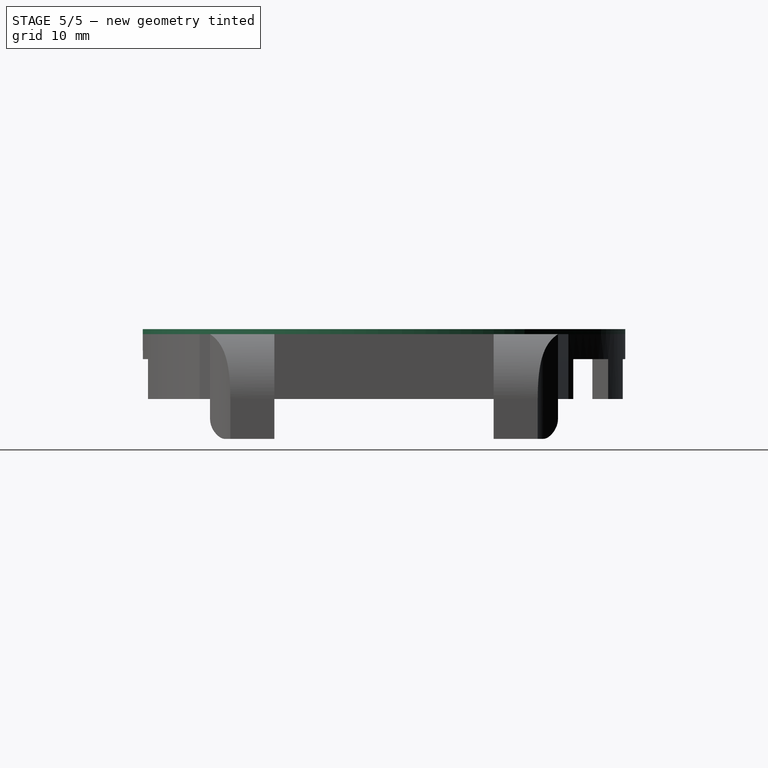
[diagram: stage 5 of 5 — right view after this stage's code; geometry added in this stage tinted green]
FEATURE [Sketcher::SketchObject] Sketch024
  ExternalGeometry = -> [Pocket015]
  FullyConstrained = true
  MapMode = 5
  Placement = pos=(0,0,6.5) rot=(0,0,1;0rad)
  Support = -> [Pocket015]
  sketch-geometry (3):
    g0: Circle CenterX=0 CenterY=0 CenterZ=0 NormalX=0 NormalY=0 NormalZ=1 AngleXU=0 Radius=13.5
    g1: ArcOfCircle CenterX=0 CenterY=0 CenterZ=0 NormalX=0 NormalY=0 NormalZ=1 AngleXU=0 Radius=24.2 StartAngle=3.51843 EndAngle=9.04794
    g2: LineSegment StartX=-22.502 StartY=8.90508 StartZ=0 EndX=-22.502 EndY=-8.90508 EndZ=0
  constraints (8):
    c: Coincident(g0,g-1)
    c: Coincident(g1,g0)
    c: Equal(g0,g-3)
    c: PointOnObject(g1,g-6)
    c: PointOnObject(g1,g-6)
    c: Equal(g1,g-4)
    c: Coincident(g2,g1)
    c: Coincident(g2,g1)
FEATURE [PartDesign::Pad] Pad005  label="Face reinforcement"
  BaseFeature = -> Pocket015
  Direction = (0,0,1)
  Length = 0.5
  Length2 = 10
  Profile = -> Sketch024
  ReferenceAxis = -> Sketch024 [N_Axis]
  Type = 0
FEATURE [Sketcher::SketchObject] Sketch025
  FullyConstrained = true
  MapMode = 5
  Placement = pos=(0,0,7) rot=(0,0,1;0rad)
  Support = -> [Pad005]
  sketch-geometry (2):
    g0: Circle CenterX=0 CenterY=0 CenterZ=0 NormalX=0 NormalY=0 NormalZ=1 AngleXU=0 Radius=19.85
    g1: Circle CenterX=0 CenterY=0 CenterZ=0 NormalX=0 NormalY=0 NormalZ=1 AngleXU=0 Radius=20.45
  constraints (4):
    c: Coincident(g0,g-1)
    c: Coincident(g1,g0)
    c: Radius(g0) = 19.85
    c: Radius(g1) = 20.45
FEATURE [PartDesign::Pocket] Pocket016  label="Positioning ring pocket"
  BaseFeature = -> Pad005
  Direction = (0,0,-1)
  Length = 0.3
  Length2 = 5
  Profile = -> Sketch025
  ReferenceAxis = -> Sketch025 [N_Axis]
  Type = 0
FEATURE [PartDesign::Plane] DatumPlane  label="LED cutoff plane"
  AttachmentOffset = pos=(0,0,25) rot=(0,0,1;0rad)
  Length = 60
  MapMode = 5
  Placement = pos=(0,-25,-5.6e-15) rot=(1,0,0;1.5708rad)
  ResizeMode = 0
  Support = -> [XZ_Plane]
  Width = 60
FEATURE [Sketcher::SketchObject] Sketch026
  FullyConstrained = true
  MapMode = 5
  Placement = pos=(0,-25,-5.6e-15) rot=(1,0,0;1.5708rad)
  Support = -> [DatumPlane]
  sketch-geometry (1):
    g0: Circle CenterX=-6.5 CenterY=4.8 CenterZ=0 NormalX=0 NormalY=0 NormalZ=1 AngleXU=0 Radius=1
  constraints (3):
    c: Diameter(g0) = 2
    c: DistanceX(g0,g-1) = 6.5
    c: DistanceY(g-1,g0) = 4.8
FEATURE [PartDesign::Pocket] Pocket017  label="LED"
  BaseFeature = -> Pocket016
  Direction = (0,1,2e-16)
  Length = 5
  Length2 = 5
  Profile = -> Sketch026
  ReferenceAxis = -> Sketch026 [N_Axis]
  Type = 0
FEATURE [PartDesign::Body] Body
  Group = -> [Sketch,Pad,Sketch001,Pocket,Sketch002,Pocket001,Sketch003,Pad001,Sketch006,Pocket002,Sketch010,Pad002,Sketch011,Pocket005,Sketch015,Pad003,Sketch016,Pocket009,Sketch017,Pocket010,Sketch018,Pad004,Sketch021,Pocket013,Sketch022,Pocket014,Sketch023,Pocket015,Sketch024,Pad005,Sketch025,Pocket016,DatumPlane,Sketch026,Pocket017]
  Origin = -> Origin
  Tip = -> Pocket017
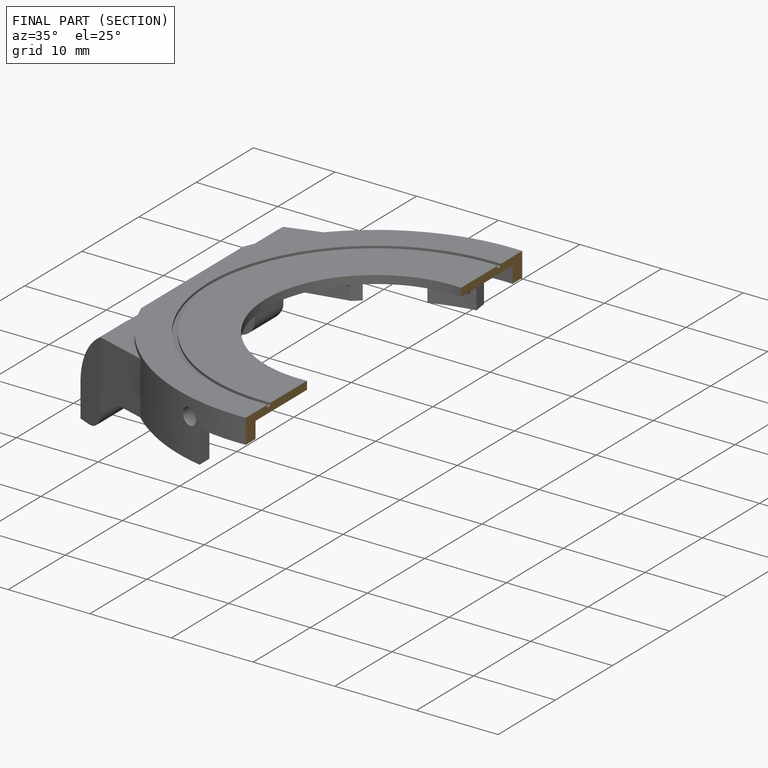
[diagram: finished part — half-section view (interior)]
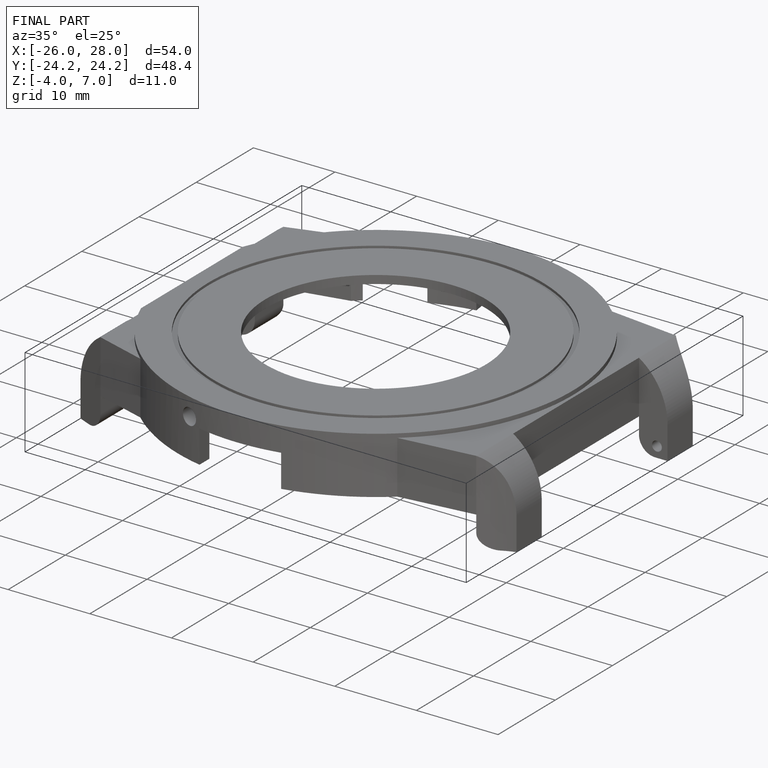
[diagram: finished part — iso view with bounding-box wireframe]
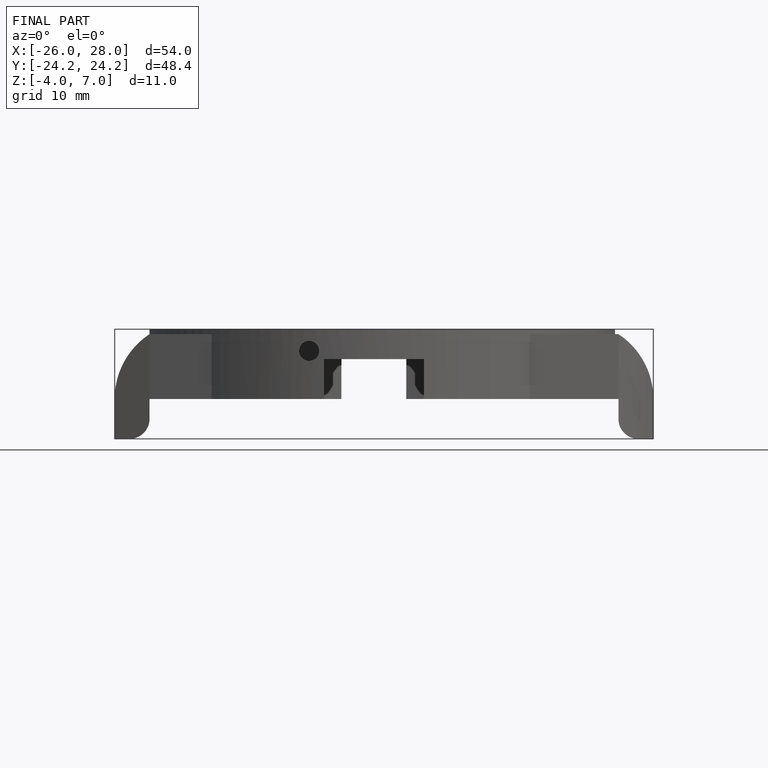
[diagram: finished part — front view with bounding-box wireframe]
